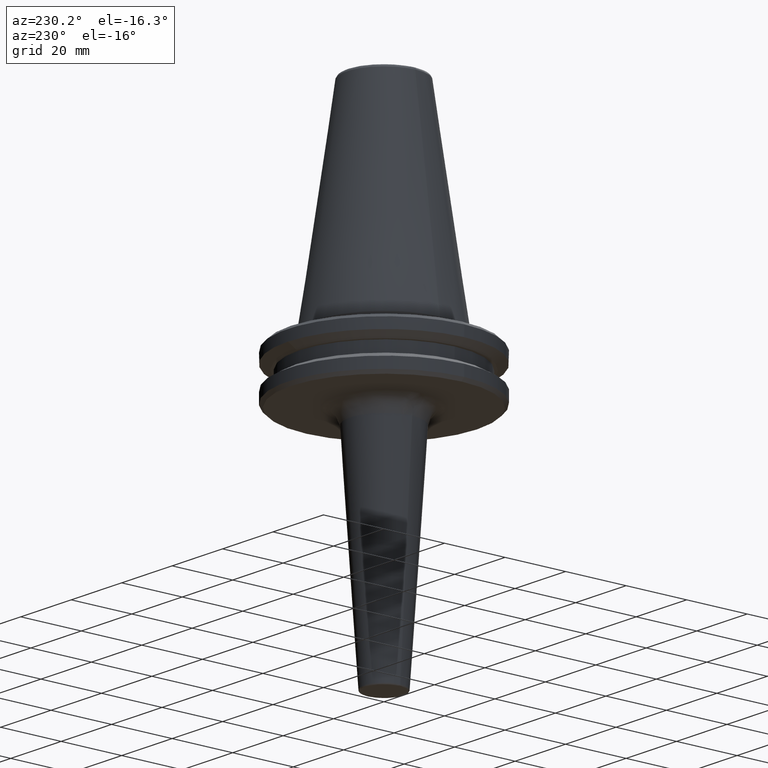
[diagram: clean part render]
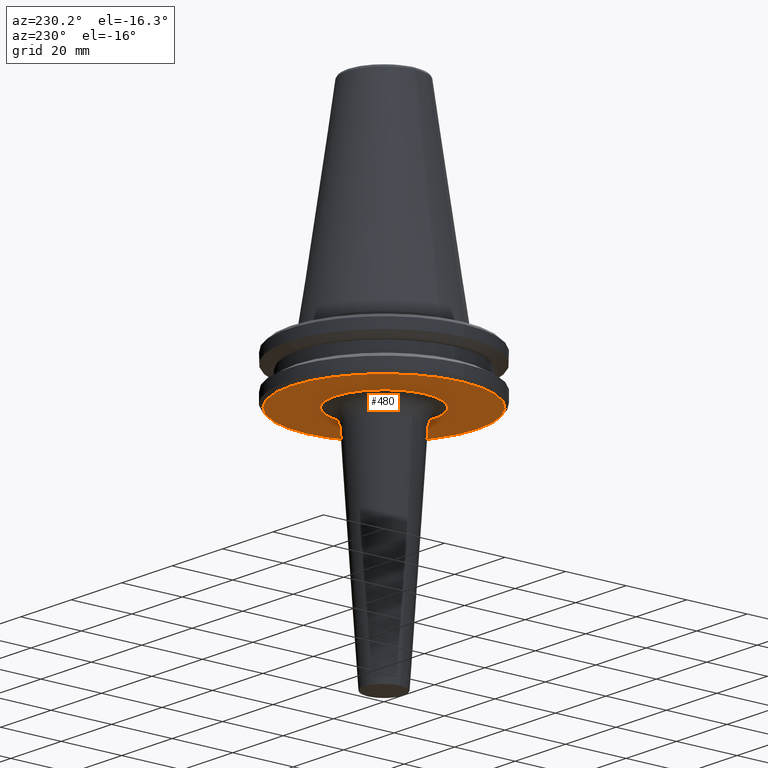
[diagram: same view with one face highlighted and labeled with its STEP entity id]
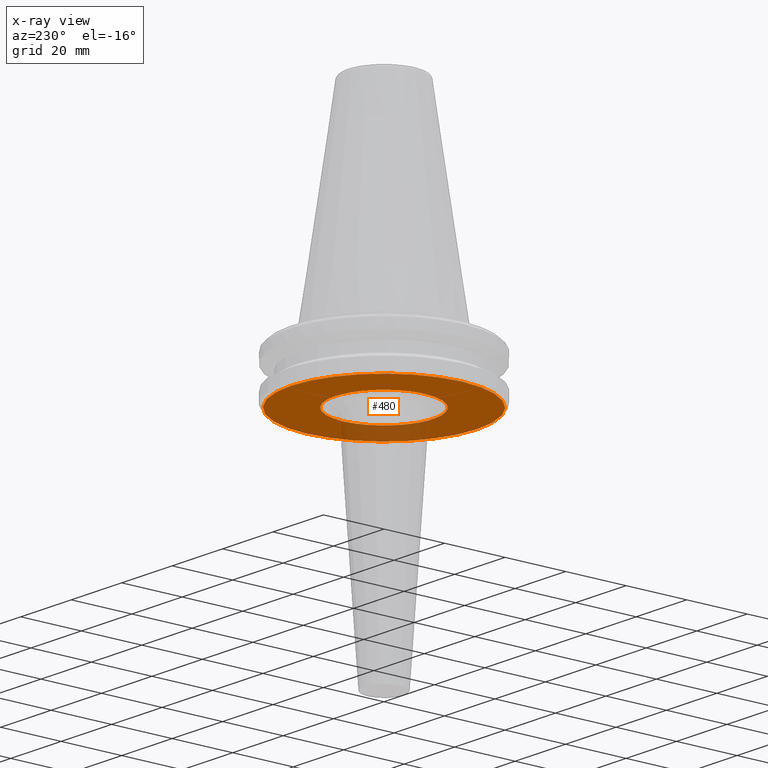
[diagram: x-ray of the same camera — body ghosted, the highlighted face saturated]
A machine part, auxiliary view. The second image highlights one B-rep face of the part: STEP entity #480.
The next image is the same camera in x-ray: the body ghosted, the highlighted face saturated — about 15% of this face is hidden behind the body in this view.
In plain terms, the highlighted planar face has unit normal (0, 0, -1).
Its self-contained STEP definition (entity closure, byte-faithful):
#2 = CARTESIAN_POINT ( 'NONE',  ( 1.971116551030571300, 16.08770573178700000, -19.10000000000000100 ) ) ;
#3 = CARTESIAN_POINT ( 'NONE',  ( 2.974150553997553500, 15.90205793444023100, -19.10000000000000100 ) ) ;
#6 = EDGE_CURVE ( 'NONE', #888, #996, #572, .T. ) ;
#9 = CARTESIAN_POINT ( 'NONE',  ( 3.008236973642987700, 15.89564859819049200, -19.10000000000000100 ) ) ;
#12 = CARTESIAN_POINT ( 'NONE',  ( 3.072635116647917100, 15.88332775239781300, -19.10000000000000500 ) ) ;
#17 = CARTESIAN_POINT ( 'NONE',  ( 3.169149084727929100, 15.86456066499453500, -19.10000000000000500 ) ) ;
#20 = CARTESIAN_POINT ( 'NONE',  ( -8.737999526921823800, 13.61514343514481200, -19.10000000000000500 ) ) ;
#25 = CARTESIAN_POINT ( 'NONE',  ( 3.393765618589601500, 15.81877006338711800, -19.10000000000000900 ) ) ;
#26 = CARTESIAN_POINT ( 'NONE',  ( 3.840667786346210600, 15.71918593617312600, -19.10000000000000500 ) ) ;
#31 = CARTESIAN_POINT ( 'NONE',  ( 4.725148521992487400, 15.48800598574859900, -19.10000000000000100 ) ) ;
#32 = CARTESIAN_POINT ( 'NONE',  ( 0.9891585670951685800, 16.17773303299791400, -19.10000000000000500 ) ) ;
#36 = CARTESIAN_POINT ( 'NONE',  ( 5.467291552774525200, 15.23497454939064100, -19.10000000000000900 ) ) ;
#39 = CARTESIAN_POINT ( 'NONE',  ( -16.08773818139473000, 1.970941229461560300, -19.10000000000000500 ) ) ;
#40 = CARTESIAN_POINT ( 'NONE',  ( 5.985428523495694500, 15.02982971854463800, -19.10000000000000100 ) ) ;
#41 = VERTEX_POINT ( 'NONE', #1140 ) ;
#43 = CARTESIAN_POINT ( 'NONE',  ( 6.018458502751270700, 15.01663702727699400, -19.10000000000000100 ) ) ;
#46 = CARTESIAN_POINT ( 'NONE',  ( 6.081817590824343300, 14.99109058592911300, -19.10000000000000500 ) ) ;
#48 = CARTESIAN_POINT ( 'NONE',  ( 6.176706686414919800, 14.95248451681799100, -19.10000000000000500 ) ) ;
#51 = CARTESIAN_POINT ( 'NONE',  ( 6.397067820493013800, 14.86039883926698300, -19.10000000000000500 ) ) ;
#53 = CARTESIAN_POINT ( 'NONE',  ( 6.833603066116205000, 14.66820808566471300, -19.10000000000000500 ) ) ;
#56 = CARTESIAN_POINT ( 'NONE',  ( 7.689925467230589900, 14.25174898445914800, -19.10000000000000900 ) ) ;
#59 = CARTESIAN_POINT ( 'NONE',  ( -8.040560257298219300, 14.04292798415468700, -19.10000000000000100 ) ) ;
#61 = CARTESIAN_POINT ( 'NONE',  ( -15.23497454939380100, 5.467291552766536900, -19.10000000000000500 ) ) ;
#62 = CARTESIAN_POINT ( 'NONE',  ( 8.395205085102356100, 13.83979387942406400, -19.10000000000000500 ) ) ;
#64 = CARTESIAN_POINT ( 'NONE',  ( 8.909809292678756900, 13.50333247007544900, -19.10000000000000500 ) ) ;
#65 = CARTESIAN_POINT ( 'NONE',  ( 8.969230403243500400, 13.46394756089499700, -19.10000000000000500 ) ) ;
#72 = CARTESIAN_POINT ( 'NONE',  ( 9.084976501324396400, 13.38613433630070100, -19.10000000000000500 ) ) ;
#75 = CARTESIAN_POINT ( 'NONE',  ( 9.257742390675620200, 13.26837078503416300, -19.09999999999999800 ) ) ;
#76 = CARTESIAN_POINT ( 'NONE',  ( 9.654889994771005800, 12.98628316478650600, -19.10000000000000500 ) ) ;
#80 = CARTESIAN_POINT ( 'NONE',  ( 10.42529398539852500, 12.39288392178829100, -19.10000000000000500 ) ) ;
#82 = CARTESIAN_POINT ( 'NONE',  ( 11.04468389011369400, 11.83415770921344100, -19.10000000000000100 ) ) ;
#84 = CARTESIAN_POINT ( 'NONE',  ( 12.22885520225660200, 10.64990756405711100, -19.10000000000000500 ) ) ;
#88 = CARTESIAN_POINT ( 'NONE',  ( 12.92979661513234300, 9.787143716516389700, -19.10000000000000100 ) ) ;
#91 = CARTESIAN_POINT ( 'NONE',  ( 13.57889959961305100, 8.794224005572246500, -19.10000000000000900 ) ) ;
#92 = CARTESIAN_POINT ( 'NONE',  ( -6.463105286439981600, 14.84074172916447600, -19.10000000000001200 ) ) ;
#94 = CARTESIAN_POINT ( 'NONE',  ( 13.61514343514571700, 8.737999526919411500, -19.10000000000000900 ) ) ;
#96 = CARTESIAN_POINT ( 'NONE',  ( 13.68842039294202500, 8.622777181132301300, -19.10000000000000900 ) ) ;
#97 = CARTESIAN_POINT ( 'NONE',  ( 13.79718642340126100, 8.449352837137608300, -19.10000000000000900 ) ) ;
#99 = CARTESIAN_POINT ( 'NONE',  ( 14.04292798415957900, 8.040560257285116900, -19.10000000000000500 ) ) ;
#101 = CARTESIAN_POINT ( 'NONE',  ( 14.50222773108998600, 7.206431988787282500, -19.10000000000000500 ) ) ;
#104 = CARTESIAN_POINT ( 'NONE',  ( 14.84074172916819700, 6.463105286429987800, -19.10000000000000500 ) ) ;
#105 = CARTESIAN_POINT ( 'NONE',  ( 15.05446926980854800, 5.923190165142228700, -19.10000000000000500 ) ) ;
#106 = CARTESIAN_POINT ( 'NONE',  ( 15.06594842473603400, 5.893923458087432900, -19.10000000000000500 ) ) ;
#109 = CARTESIAN_POINT ( 'NONE',  ( 15.08971340016873900, 5.832815762092592700, -19.10000000000000900 ) ) ;
#111 = DIRECTION ( 'NONE',  ( -1.000000000000000000, 0.0000000000000000000, -0.0000000000000000000 ) ) ;
#112 = EDGE_CURVE ( 'NONE', #1405, #41, #427, .T. ) ;
#113 = CARTESIAN_POINT ( 'NONE',  ( 15.12507447555004300, 5.741072942177204700, -19.10000000000000900 ) ) ;
#115 = CARTESIAN_POINT ( 'NONE',  ( 15.20557893706553900, 5.526437430912799300, -19.10000000000000100 ) ) ;
#116 = DIRECTION ( 'NONE',  ( 0.0000000000000000000, 0.0000000000000000000, -1.000000000000000000 ) ) ;
#118 = CARTESIAN_POINT ( 'NONE',  ( 15.35856900259964600, 5.094890682536595600, -19.10000000000000900 ) ) ;
#119 = CARTESIAN_POINT ( 'NONE',  ( 15.63247370368026200, 4.222694282394644300, -19.10000000000000500 ) ) ;
#123 = CARTESIAN_POINT ( 'NONE',  ( 15.81226271034205900, 3.459492390748053000, -19.09999999999999800 ) ) ;
#125 = CARTESIAN_POINT ( 'NONE',  ( -2.517484680619183300, 15.98154654005900700, -19.10000000000000500 ) ) ;
#126 = CARTESIAN_POINT ( 'NONE',  ( 15.91364743245185100, 2.911522033802087500, -19.10000000000000900 ) ) ;
#133 = CARTESIAN_POINT ( 'NONE',  ( 15.91884911776305200, 2.882924573215829500, -19.10000000000000900 ) ) ;
#134 = CARTESIAN_POINT ( 'NONE',  ( 15.92975085846598500, 2.822069884585610500, -19.10000000000000900 ) ) ;
#136 = CARTESIAN_POINT ( 'NONE',  ( 15.94583971772917500, 2.730764174004906200, -19.10000000000000100 ) ) ;
#138 = CARTESIAN_POINT ( 'NONE',  ( 15.98153412680489500, 2.517551772535636400, -19.10000000000000100 ) ) ;
#141 = CARTESIAN_POINT ( 'NONE',  ( 16.04553789480275200, 2.090463995806593800, -19.10000000000000900 ) ) ;
#142 = CARTESIAN_POINT ( 'NONE',  ( 16.14400523018405000, 1.233636547186491200, -19.10000000000000500 ) ) ;
#148 = CARTESIAN_POINT ( 'NONE',  ( 16.17776545945763900, 0.4946669138058040800, -19.10000000000000900 ) ) ;
#149 = CARTESIAN_POINT ( 'NONE',  ( 16.17776545945763500, 0.0000000000000000000, -19.10000000000000900 ) ) ;
#156 = CARTESIAN_POINT ( 'NONE',  ( -12.39288392180904300, 10.42529398538092900, -19.10000000000000100 ) ) ;
#173 = CARTESIAN_POINT ( 'NONE',  ( 0.0000000000000000000, 2.166680460328873200E-015, -19.10000000000000500 ) ) ;
#240 = CARTESIAN_POINT ( 'NONE',  ( -16.17776545945763500, 1.981204868728140300E-015, -19.10000000000000900 ) ) ;
#250 = CARTESIAN_POINT ( 'NONE',  ( 16.17776545945763500, 0.0000000000000000000, -19.10000000000000900 ) ) ;
#251 = CARTESIAN_POINT ( 'NONE',  ( 16.17776545945763200, -0.9896893680380787200, -19.10000000000000100 ) ) ;
#254 = CARTESIAN_POINT ( 'NONE',  ( 16.08773818139473000, -1.970941229441625800, -19.10000000000000500 ) ) ;
#258 = CARTESIAN_POINT ( 'NONE',  ( 0.0000000000000000000, 0.0000000000000000000, -19.10000000000006200 ) ) ;
#264 = CARTESIAN_POINT ( 'NONE',  ( 15.90205692038999200, -2.974156032797210500, -19.10000000000000900 ) ) ;
#267 = CARTESIAN_POINT ( 'NONE',  ( 15.89564859819135600, -3.008236973640769000, -19.10000000000000900 ) ) ;
#269 = CARTESIAN_POINT ( 'NONE',  ( 15.88332775239949300, -3.072635116643580100, -19.10000000000000500 ) ) ;
#271 = CARTESIAN_POINT ( 'NONE',  ( 15.86456066499740400, -3.169149084720523500, -19.10000000000000500 ) ) ;
#273 = CARTESIAN_POINT ( 'NONE',  ( -3.459492390746776700, 15.81226271034234400, -19.10000000000000500 ) ) ;
#276 = CARTESIAN_POINT ( 'NONE',  ( 15.81877006339245800, -3.393765618575776100, -19.10000000000000500 ) ) ;
#279 = CARTESIAN_POINT ( 'NONE',  ( 15.71918593618229200, -3.840667786322510900, -19.10000000000000500 ) ) ;
#283 = CARTESIAN_POINT ( 'NONE',  ( -8.794224005571855700, 13.57889959961366200, -19.10000000000000900 ) ) ;
#287 = CARTESIAN_POINT ( 'NONE',  ( 15.48800598576080900, -4.725148521960875300, -19.10000000000000100 ) ) ;
#291 = CARTESIAN_POINT ( 'NONE',  ( 15.23497454939761800, -5.467291552756460500, -19.10000000000000100 ) ) ;
#294 = CARTESIAN_POINT ( 'NONE',  ( -15.01663702727796900, 6.018458502748801600, -19.10000000000000100 ) ) ;
#299 = CARTESIAN_POINT ( 'NONE',  ( 15.02982971854420100, -5.985428523496832300, -19.10000000000000500 ) ) ;
#301 = CARTESIAN_POINT ( 'NONE',  ( 15.01663702727763900, -6.018458502749685300, -19.10000000000000500 ) ) ;
#303 = CARTESIAN_POINT ( 'NONE',  ( 14.99109058593037400, -6.081817590821252400, -19.10000000000000500 ) ) ;
#309 = CARTESIAN_POINT ( 'NONE',  ( 14.95248451682014600, -6.176706686409636900, -19.10000000000000500 ) ) ;
#311 = AXIS2_PLACEMENT_3D ( 'NONE', #1136, #788, #1188 ) ;
#317 = CARTESIAN_POINT ( 'NONE',  ( 14.86039883927101900, -6.397067820483150600, -19.10000000000000900 ) ) ;
#319 = CARTESIAN_POINT ( 'NONE',  ( 14.66820808567163100, -6.833603066099289700, -19.10000000000000500 ) ) ;
#321 = CARTESIAN_POINT ( 'NONE',  ( 14.25174898446837600, -7.689925467208041700, -19.10000000000000900 ) ) ;
#324 = CARTESIAN_POINT ( 'NONE',  ( -13.38613433630616900, 9.084976501319761900, -19.10000000000000500 ) ) ;
#325 = CARTESIAN_POINT ( 'NONE',  ( 13.83979387942934700, -8.395205085089468600, -19.10000000000000900 ) ) ;
#326 = CARTESIAN_POINT ( 'NONE',  ( 13.50333247007478800, -8.909809292680360900, -19.10000000000000100 ) ) ;
#331 = CARTESIAN_POINT ( 'NONE',  ( 13.46394756089642200, -8.969230403242505600, -19.10000000000000100 ) ) ;
#332 = CARTESIAN_POINT ( 'NONE',  ( 13.38613433630341700, -9.084976501322508100, -19.10000000000000100 ) ) ;
#336 = CARTESIAN_POINT ( 'NONE',  ( 13.26837078503867300, -9.257742390672483200, -19.10000000000000500 ) ) ;
#345 = CARTESIAN_POINT ( 'NONE',  ( 12.98628316479425100, -9.654889994765623500, -19.10000000000001200 ) ) ;
#349 = CARTESIAN_POINT ( 'NONE',  ( 12.39288392179861700, -10.42529398539135600, -19.10000000000000500 ) ) ;
#353 = CARTESIAN_POINT ( 'NONE',  ( 11.83415770921933900, -11.04468389010959900, -19.10000000000000900 ) ) ;
#355 = CARTESIAN_POINT ( 'NONE',  ( 10.64990756404531600, -12.22885520226480700, -19.10000000000000500 ) ) ;
#357 = CARTESIAN_POINT ( 'NONE',  ( 9.787143716510067600, -12.92979661513507300, -19.10000000000000900 ) ) ;
#362 = CARTESIAN_POINT ( 'NONE',  ( 8.794224005572633700, -13.57889959961288400, -19.10000000000000500 ) ) ;
#365 = CARTESIAN_POINT ( 'NONE',  ( 8.737999526920878800, -13.61514343514491700, -19.10000000000000100 ) ) ;
#367 = CARTESIAN_POINT ( 'NONE',  ( -15.48800598575412800, 4.725148521978519900, -19.10000000000000500 ) ) ;
#370 = CARTESIAN_POINT ( 'NONE',  ( 8.622777181135097300, -13.68842039294050900, -19.10000000000000500 ) ) ;
#371 = CARTESIAN_POINT ( 'NONE',  ( 8.449352837142260600, -13.79718642339874500, -19.10000000000000900 ) ) ;
#381 = CARTESIAN_POINT ( 'NONE',  ( 8.040560257293092800, -14.04292798415527200, -19.10000000000000500 ) ) ;
#383 = CARTESIAN_POINT ( 'NONE',  ( -15.86456066499583200, 3.169149084724659700, -19.10000000000000500 ) ) ;
#393 = CARTESIAN_POINT ( 'NONE',  ( 7.206431988797927300, -14.50222773108423400, -19.10000000000000500 ) ) ;
#397 = CARTESIAN_POINT ( 'NONE',  ( 6.463105286436075400, -14.84074172916490800, -19.10000000000000100 ) ) ;
#402 = CARTESIAN_POINT ( 'NONE',  ( 5.923190165141850400, -15.05446926980874900, -19.10000000000000500 ) ) ;
#407 = CARTESIAN_POINT ( 'NONE',  ( 5.893923458087883200, -15.06594842473596100, -19.10000000000000900 ) ) ;
#410 = CARTESIAN_POINT ( 'NONE',  ( 5.832815762093464000, -15.08971340016859000, -19.10000000000000500 ) ) ;
#414 = CARTESIAN_POINT ( 'NONE',  ( -14.25174898447302700, 7.689925467195524600, -19.10000000000000500 ) ) ;
#416 = CARTESIAN_POINT ( 'NONE',  ( 5.741072942178694100, -15.12507447554980000, -19.10000000000000500 ) ) ;
#420 = CARTESIAN_POINT ( 'NONE',  ( 5.526437430915565900, -15.20557893706509500, -19.10000000000000500 ) ) ;
#423 = CARTESIAN_POINT ( 'NONE',  ( 5.094890682541338500, -15.35856900259886800, -19.10000000000000900 ) ) ;
#427 = B_SPLINE_CURVE_WITH_KNOTS ( 'NONE', 3,
 ( #1275, #1384, #963, #1007, #732, #725, #716, #714, #706, #695, #692, #689, #685, #679, #676, #669, #667, #663, #661, #650, #646, #642, #635, #617, #606, #602, #599, #596, #594, #588, #583, #578, #575, #567, #561, #554, #549, #546, #538, #533, #527, #519, #514, #511, #506, #504, #502, #498, #488, #485, #478, #473, #463, #460, #456, #447, #444, #438, #436, #432, #428, #423, #420, #416, #410, #407, #402, #397, #393, #381, #371, #370, #365, #362, #357, #355, #353, #349, #345, #336, #332, #331, #326, #325, #321, #319, #317, #309, #303, #301, #299, #291, #287, #279, #276, #271, #269, #267, #264, #254, #251, #250 ),
 .UNSPECIFIED., .F., .F.,
 ( 4, 1, 1, 1, 1, 2, 2, 1, 1, 1, 1, 2, 2, 1, 1, 1, 2, 2, 2, 1, 1, 1, 2, 2, 1, 1, 1, 1, 2, 2, 1, 1, 1, 1, 2, 2, 2, 1, 1, 1, 1, 2, 2, 1, 1, 1, 1, 2, 2, 1, 1, 1, 2, 2, 2, 1, 1, 1, 2, 2, 1, 1, 1, 1, 2, 2, 1, 1, 1, 1, 2, 2, 4 ),
 ( 0.0000000000000000000, 0.03125000000000027100, 0.04687500000000040200, 0.05468750000000050000, 0.05859375000000054800, 0.06054687500000059000, 0.06250000000000062500, 0.09375000000000148500, 0.1093750000000018900, 0.1171875000000021200, 0.1210937500000022600, 0.1230468750000023300, 0.1250000000000023900, 0.1562500000000031900, 0.1718750000000036100, 0.1796875000000038600, 0.1835937500000039100, 0.1875000000000040000, 0.2500000000000058300, 0.2812500000000067700, 0.2968750000000073300, 0.3046875000000076600, 0.3085937500000077700, 0.3125000000000079400, 0.3437500000000091000, 0.3593750000000096600, 0.3671875000000099400, 0.3710937500000101000, 0.3730468750000101600, 0.3750000000000102700, 0.4062500000000103300, 0.4218750000000104400, 0.4296875000000104400, 0.4335937500000104400, 0.4355468750000104400, 0.4375000000000104400, 0.5000000000000105500, 0.5312500000000105500, 0.5468750000000106600, 0.5546875000000105500, 0.5585937500000106600, 0.5605468750000106600, 0.5625000000000106600, 0.5937500000000099900, 0.6093750000000097700, 0.6171875000000095500, 0.6210937500000094400, 0.6230468750000094400, 0.6250000000000093300, 0.6562500000000077700, 0.6718750000000069900, 0.6796875000000066600, 0.6835937500000065500, 0.6875000000000065500, 0.7500000000000055500, 0.7812500000000051100, 0.7968750000000048800, 0.8046875000000047700, 0.8085937500000046600, 0.8125000000000045500, 0.8437500000000044400, 0.8593750000000043300, 0.8671875000000043300, 0.8710937500000043300, 0.8730468750000043300, 0.8750000000000043300, 0.9062500000000033300, 0.9218750000000027800, 0.9296875000000025500, 0.9335937500000023300, 0.9355468750000022200, 0.9375000000000021100, 1.000000000000000000 ),
 .UNSPECIFIED. ) ;
#428 = CARTESIAN_POINT ( 'NONE',  ( 4.222694282400973400, -15.63247370367923000, -19.10000000000001200 ) ) ;
#432 = CARTESIAN_POINT ( 'NONE',  ( 3.459492390751665700, -15.81226271034147700, -19.09999999999999800 ) ) ;
#436 = CARTESIAN_POINT ( 'NONE',  ( 2.911522033801861500, -15.91364743245189400, -19.10000000000000500 ) ) ;
#438 = CARTESIAN_POINT ( 'NONE',  ( 2.882913790585304600, -15.91885111275051100, -19.10000000000000100 ) ) ;
#442 = CARTESIAN_POINT ( 'NONE',  ( -5.526437430911822300, 15.20557893706576300, -19.10000000000000100 ) ) ;
#444 = CARTESIAN_POINT ( 'NONE',  ( 2.822048832783158100, -15.92975475344151400, -19.10000000000000500 ) ) ;
#447 = CARTESIAN_POINT ( 'NONE',  ( 2.730728231903156700, -15.94584636768738800, -19.09999999999999800 ) ) ;
#456 = CARTESIAN_POINT ( 'NONE',  ( 2.517484680612378100, -15.98154654006025200, -19.10000000000000900 ) ) ;
#460 = CARTESIAN_POINT ( 'NONE',  ( 2.090348981080995200, -16.04555917466905200, -19.10000000000000100 ) ) ;
#463 = CARTESIAN_POINT ( 'NONE',  ( 1.233483194219029400, -16.14403360333912500, -19.10000000000000500 ) ) ;
#467 = CARTESIAN_POINT ( 'NONE',  ( -15.90205692038998800, 2.974156032796588800, -19.10000000000000100 ) ) ;
#473 = CARTESIAN_POINT ( 'NONE',  ( 0.4945792835386778600, -16.17778167268910700, -19.10000000000000500 ) ) ;
#475 = CARTESIAN_POINT ( 'NONE',  ( -2.822048832785294600, 15.92975475344112900, -19.10000000000000500 ) ) ;
#478 = CARTESIAN_POINT ( 'NONE',  ( -0.9891585670773813700, -16.17773303299469500, -19.10000000000001200 ) ) ;
#480 = ADVANCED_FACE ( 'NONE', ( #634, #863 ), #943, .T. ) ;
#485 = CARTESIAN_POINT ( 'NONE',  ( -1.971116551011383900, -16.08770573178377500, -19.10000000000001200 ) ) ;
#488 = CARTESIAN_POINT ( 'NONE',  ( -2.974150553998158300, -15.90205793444032900, -19.10000000000000100 ) ) ;
#491 = CARTESIAN_POINT ( 'NONE',  ( -2.911522033802166100, 15.91364743245183400, -19.10000000000000500 ) ) ;
#498 = CARTESIAN_POINT ( 'NONE',  ( -3.008236973640896000, -15.89564859819132500, -19.10000000000000500 ) ) ;
#502 = CARTESIAN_POINT ( 'NONE',  ( -3.072635116643827500, -15.88332775239943700, -19.10000000000000500 ) ) ;
#503 = CARTESIAN_POINT ( 'NONE',  ( -15.89564859819089000, 3.008236973642010700, -19.10000000000000500 ) ) ;
#504 = CARTESIAN_POINT ( 'NONE',  ( -3.169149084720940500, -15.86456066499730100, -19.10000000000000500 ) ) ;
#506 = CARTESIAN_POINT ( 'NONE',  ( -3.393765618576554600, -15.81877006339228100, -19.10000000000000900 ) ) ;
#511 = CARTESIAN_POINT ( 'NONE',  ( -3.840667786323845400, -15.71918593618198700, -19.10000000000000500 ) ) ;
#514 = CARTESIAN_POINT ( 'NONE',  ( -4.725148521962655200, -15.48800598576041000, -19.10000000000000500 ) ) ;
#519 = CARTESIAN_POINT ( 'NONE',  ( -5.467291552757482800, -15.23497454939738900, -19.10000000000000900 ) ) ;
#523 = CARTESIAN_POINT ( 'NONE',  ( -13.46394756089786600, 8.969230403241059700, -19.10000000000000100 ) ) ;
#525 = CARTESIAN_POINT ( 'NONE',  ( -15.88332775239857700, 3.072635116646004900, -19.10000000000000500 ) ) ;
#527 = CARTESIAN_POINT ( 'NONE',  ( -5.985428523496771000, -15.02982971854421200, -19.10000000000000500 ) ) ;
#529 = CARTESIAN_POINT ( 'NONE',  ( -14.99109058593101600, 6.081817590819528400, -19.10000000000000500 ) ) ;
#533 = CARTESIAN_POINT ( 'NONE',  ( -6.018458502749775000, -15.01663702727757900, -19.10000000000000100 ) ) ;
#538 = CARTESIAN_POINT ( 'NONE',  ( -6.081817590821423800, -14.99109058593026600, -19.10000000000000900 ) ) ;
#546 = CARTESIAN_POINT ( 'NONE',  ( -6.176706686409928300, -14.95248451681996800, -19.10000000000000900 ) ) ;
#549 = CARTESIAN_POINT ( 'NONE',  ( -6.397067820483692400, -14.86039883927066400, -19.10000000000000900 ) ) ;
#553 = CARTESIAN_POINT ( 'NONE',  ( -7.206431988804767200, 14.50222773108346900, -19.10000000000000500 ) ) ;
#554 = CARTESIAN_POINT ( 'NONE',  ( -6.833603066100216900, -14.66820808567103100, -19.10000000000000500 ) ) ;
#561 = CARTESIAN_POINT ( 'NONE',  ( -7.689925467209268300, -14.25174898446757500, -19.10000000000000500 ) ) ;
#567 = CARTESIAN_POINT ( 'NONE',  ( -8.395205085090175600, -13.83979387942887800, -19.10000000000000500 ) ) ;
#572 = CIRCLE ( 'NONE', #311, 30.75000000000072100 ) ;
#575 = CARTESIAN_POINT ( 'NONE',  ( -8.909809292680279200, -13.50333247007484900, -19.10000000000000500 ) ) ;
#578 = CARTESIAN_POINT ( 'NONE',  ( -8.969230403241878600, -13.46394756089683200, -19.10000000000000100 ) ) ;
#583 = CARTESIAN_POINT ( 'NONE',  ( -9.084976501321314400, -13.38613433630420200, -19.10000000000000500 ) ) ;
#586 = CARTESIAN_POINT ( 'NONE',  ( -15.71918593617725800, 3.840667786335744300, -19.10000000000000100 ) ) ;
#588 = CARTESIAN_POINT ( 'NONE',  ( -9.257742390670499000, -13.26837078503997000, -19.10000000000000100 ) ) ;
#594 = CARTESIAN_POINT ( 'NONE',  ( -9.654889994762227100, -12.98628316479646600, -19.10000000000000500 ) ) ;
#596 = CARTESIAN_POINT ( 'NONE',  ( -10.42529398538682300, -12.39288392180158000, -19.10000000000000500 ) ) ;
#599 = CARTESIAN_POINT ( 'NONE',  ( -11.04468389010700400, -11.83415770922103300, -19.10000000000000500 ) ) ;
#602 = CARTESIAN_POINT ( 'NONE',  ( -12.22885520226998700, -10.64990756404193200, -19.10000000000000500 ) ) ;
#606 = CARTESIAN_POINT ( 'NONE',  ( -12.92979661512444300, -9.787143716522493300, -19.10000000000000900 ) ) ;
#616 = CARTESIAN_POINT ( 'NONE',  ( -8.622777181136903800, 13.68842039294030500, -19.10000000000000500 ) ) ;
#617 = CARTESIAN_POINT ( 'NONE',  ( -13.57889959961354800, -8.794224005571859200, -19.10000000000000500 ) ) ;
#634 = FACE_BOUND ( 'NONE', #1154, .T. ) ;
#635 = CARTESIAN_POINT ( 'NONE',  ( -13.61514343514502900, -8.737999526921161200, -19.10000000000000900 ) ) ;
#642 = CARTESIAN_POINT ( 'NONE',  ( -13.68842039294072400, -8.622777181135635500, -19.10000000000000500 ) ) ;
#646 = CARTESIAN_POINT ( 'NONE',  ( -13.79718642339909900, -8.449352837143148800, -19.10000000000000900 ) ) ;
#650 = CARTESIAN_POINT ( 'NONE',  ( -14.04292798415588100, -8.040560257294618700, -19.10000000000000500 ) ) ;
#658 = ORIENTED_EDGE ( 'NONE', *, *, #6, .F. ) ;
#661 = CARTESIAN_POINT ( 'NONE',  ( -14.50222773108504600, -7.206431988799956800, -19.10000000000000100 ) ) ;
#663 = CARTESIAN_POINT ( 'NONE',  ( -14.84074172916538200, -6.463105286437233600, -19.10000000000001200 ) ) ;
#667 = CARTESIAN_POINT ( 'NONE',  ( -15.05446926980872700, -5.923190165141775800, -19.10000000000001200 ) ) ;
#669 = CARTESIAN_POINT ( 'NONE',  ( -15.06594842473605800, -5.893923458087379600, -19.10000000000000900 ) ) ;
#671 = CARTESIAN_POINT ( 'NONE',  ( 30.75000000000072100, 0.0000000000000000000, -19.10000000000006200 ) ) ;
#676 = CARTESIAN_POINT ( 'NONE',  ( -15.08971340016876500, -5.832815762092480800, -19.09999999999999800 ) ) ;
#679 = CARTESIAN_POINT ( 'NONE',  ( -15.12507447555009700, -5.741072942177023500, -19.10000000000000500 ) ) ;
#685 = CARTESIAN_POINT ( 'NONE',  ( -15.20557893706564400, -5.526437430912454700, -19.10000000000000900 ) ) ;
#689 = CARTESIAN_POINT ( 'NONE',  ( -15.35856900259981500, -5.094890682536005900, -19.10000000000000500 ) ) ;
#692 = CARTESIAN_POINT ( 'NONE',  ( -15.63247370368048200, -4.222694282393861800, -19.10000000000000500 ) ) ;
#695 = CARTESIAN_POINT ( 'NONE',  ( -15.81226271034219300, -3.459492390747604100, -19.10000000000000500 ) ) ;
#700 = CARTESIAN_POINT ( 'NONE',  ( -10.64990756403340400, 12.22885520227671600, -19.10000000000000900 ) ) ;
#706 = CARTESIAN_POINT ( 'NONE',  ( -15.91364743245184100, -2.911522033802117700, -19.10000000000000500 ) ) ;
#714 = CARTESIAN_POINT ( 'NONE',  ( -15.91884911776305400, -2.882924573215801100, -19.10000000000000900 ) ) ;
#716 = CARTESIAN_POINT ( 'NONE',  ( -15.92975085846598100, -2.822069884585550100, -19.10000000000000100 ) ) ;
#719 = CARTESIAN_POINT ( 'NONE',  ( -13.83979387943199400, 8.395205085082318800, -19.10000000000000500 ) ) ;
#725 = CARTESIAN_POINT ( 'NONE',  ( -15.94583971772917500, -2.730764174004805000, -19.10000000000000500 ) ) ;
#732 = CARTESIAN_POINT ( 'NONE',  ( -15.98153412680489500, -2.517551772535444600, -19.10000000000000100 ) ) ;
#738 = CARTESIAN_POINT ( 'NONE',  ( -14.66820808567512400, 6.833603066089902500, -19.10000000000000900 ) ) ;
#742 = CARTESIAN_POINT ( 'NONE',  ( -2.882913790586399300, 15.91885111275032500, -19.10000000000000100 ) ) ;
#751 = CIRCLE ( 'NONE', #1224, 30.75000000000072100 ) ;
#777 = CARTESIAN_POINT ( 'NONE',  ( -8.449352837145246700, 13.79718642339840100, -19.10000000000000100 ) ) ;
#780 = ORIENTED_EDGE ( 'NONE', *, *, #1483, .F. ) ;
#785 = DIRECTION ( 'NONE',  ( -0.0000000000000000000, -0.0000000000000000000, 1.000000000000000000 ) ) ;
#788 = DIRECTION ( 'NONE',  ( -0.0000000000000000000, -0.0000000000000000000, 1.000000000000000000 ) ) ;
#806 = CARTESIAN_POINT ( 'NONE',  ( -4.222694282392415800, 15.63247370368075000, -19.10000000000000900 ) ) ;
#818 = EDGE_LOOP ( 'NONE', ( #780, #658 ) ) ;
#826 = CARTESIAN_POINT ( 'NONE',  ( -16.17776545945763500, 1.981204868728140300E-015, -19.10000000000000900 ) ) ;
#844 = CARTESIAN_POINT ( 'NONE',  ( -30.75000000000072100, 3.827021247335525400E-015, -19.10000000000006200 ) ) ;
#851 = ORIENTED_EDGE ( 'NONE', *, *, #1334, .T. ) ;
#857 = DIRECTION ( 'NONE',  ( 1.000000000000000000, 0.0000000000000000000, 0.0000000000000000000 ) ) ;
#863 = FACE_OUTER_BOUND ( 'NONE', #818, .T. ) ;
#886 = CARTESIAN_POINT ( 'NONE',  ( -16.17776545945763900, 0.9896893680579755800, -19.10000000000000100 ) ) ;
#888 = VERTEX_POINT ( 'NONE', #844 ) ;
#898 = CARTESIAN_POINT ( 'NONE',  ( -11.83415770922529500, 11.04468389010363600, -19.10000000000000900 ) ) ;
#915 = CARTESIAN_POINT ( 'NONE',  ( -13.26837078504323300, 9.257742390667917900, -19.09999999999999400 ) ) ;
#926 = CARTESIAN_POINT ( 'NONE',  ( -14.86039883927305800, 6.397067820477669600, -19.10000000000000500 ) ) ;
#937 = CARTESIAN_POINT ( 'NONE',  ( -12.98628316480206900, 9.654889994757805700, -19.10000000000000900 ) ) ;
#943 = PLANE ( 'NONE',  #1287 ) ;
#952 = CARTESIAN_POINT ( 'NONE',  ( -5.893923458087277500, 15.06594842473606700, -19.10000000000000100 ) ) ;
#963 = CARTESIAN_POINT ( 'NONE',  ( -16.14400523018405000, -1.233636547186051800, -19.10000000000000500 ) ) ;
#970 = CARTESIAN_POINT ( 'NONE',  ( -2.730728231906806700, 15.94584636768674100, -19.10000000000000900 ) ) ;
#986 = B_SPLINE_CURVE_WITH_KNOTS ( 'NONE', 3,
 ( #149, #148, #142, #141, #138, #136, #134, #133, #126, #123, #119, #118, #115, #113, #109, #106, #105, #104, #101, #99, #97, #96, #94, #91, #88, #84, #82, #80, #76, #75, #72, #65, #64, #62, #56, #53, #51, #48, #46, #43, #40, #36, #31, #26, #25, #17, #12, #9, #3, #2, #32, #1301, #1062, #1112, #125, #970, #475, #742, #491, #273, #806, #1337, #442, #1281, #1081, #952, #1278, #92, #553, #59, #777, #616, #20, #283, #1020, #700, #898, #156, #937, #915, #324, #523, #1280, #719, #414, #738, #926, #1328, #529, #294, #1070, #61, #367, #586, #1433, #383, #525, #503, #467, #39, #886, #240 ),
 .UNSPECIFIED., .F., .F.,
 ( 4, 1, 1, 1, 1, 2, 2, 1, 1, 1, 1, 2, 2, 1, 1, 1, 2, 2, 2, 1, 1, 1, 2, 2, 1, 1, 1, 1, 2, 2, 1, 1, 1, 1, 2, 2, 2, 1, 1, 1, 1, 2, 2, 1, 1, 1, 1, 2, 2, 1, 1, 1, 2, 2, 2, 1, 1, 1, 2, 2, 1, 1, 1, 1, 2, 2, 1, 1, 1, 1, 2, 2, 4 ),
 ( 0.0000000000000000000, 0.03124999999999846700, 0.04687499999999771000, 0.05468749999999734900, 0.05859374999999718300, 0.06054687499999710000, 0.06249999999999701600, 0.09374999999999600300, 0.1093749999999954900, 0.1171874999999952500, 0.1210937499999951700, 0.1230468749999951300, 0.1249999999999950900, 0.1562499999999945000, 0.1718749999999941700, 0.1796874999999940900, 0.1835937499999940300, 0.1874999999999939800, 0.2499999999999933900, 0.2812499999999930100, 0.2968749999999929500, 0.3046874999999929500, 0.3085937499999930100, 0.3124999999999931200, 0.3437499999999933400, 0.3593749999999934500, 0.3671874999999935100, 0.3710937499999935600, 0.3730468749999935600, 0.3749999999999935600, 0.4062499999999942300, 0.4218749999999945600, 0.4296874999999947300, 0.4335937499999948400, 0.4355468749999948400, 0.4374999999999948400, 0.4999999999999958900, 0.5312499999999963400, 0.5468749999999965600, 0.5546874999999966700, 0.5585937499999966700, 0.5605468749999966700, 0.5624999999999966700, 0.5937499999999966700, 0.6093749999999965600, 0.6171874999999964500, 0.6210937499999963400, 0.6230468749999964500, 0.6249999999999964500, 0.6562499999999966700, 0.6718749999999967800, 0.6796874999999968900, 0.6835937499999968900, 0.6874999999999968900, 0.7499999999999976700, 0.7812499999999981100, 0.7968749999999982200, 0.8046874999999982200, 0.8085937499999983300, 0.8124999999999983300, 0.8437499999999981100, 0.8593749999999980000, 0.8671874999999980000, 0.8710937499999980000, 0.8730468749999980000, 0.8749999999999980000, 0.9062499999999983300, 0.9218749999999985600, 0.9296874999999985600, 0.9335937499999985600, 0.9355468749999985600, 0.9374999999999986700, 1.000000000000000000 ),
 .UNSPECIFIED. ) ;
#996 = VERTEX_POINT ( 'NONE', #671 ) ;
#1007 = CARTESIAN_POINT ( 'NONE',  ( -16.04553789480274200, -2.090463995806264300, -19.09999999999999400 ) ) ;
#1020 = CARTESIAN_POINT ( 'NONE',  ( -9.787143716522550100, 12.92979661512259200, -19.10000000000001200 ) ) ;
#1062 = CARTESIAN_POINT ( 'NONE',  ( -1.233483194234600300, 16.14403360333629700, -19.10000000000000500 ) ) ;
#1070 = CARTESIAN_POINT ( 'NONE',  ( -15.02982971854444600, 5.985428523496196400, -19.10000000000000500 ) ) ;
#1081 = CARTESIAN_POINT ( 'NONE',  ( -5.832815762092285400, 15.08971340016880600, -19.10000000000000900 ) ) ;
#1112 = CARTESIAN_POINT ( 'NONE',  ( -2.090348981092675600, 16.04555917466693800, -19.10000000000000500 ) ) ;
#1136 = CARTESIAN_POINT ( 'NONE',  ( 0.0000000000000000000, 0.0000000000000000000, -19.10000000000006200 ) ) ;
#1140 = CARTESIAN_POINT ( 'NONE',  ( 16.17776545945763500, 0.0000000000000000000, -19.10000000000000900 ) ) ;
#1154 = EDGE_LOOP ( 'NONE', ( #851, #1161 ) ) ;
#1161 = ORIENTED_EDGE ( 'NONE', *, *, #112, .T. ) ;
#1188 = DIRECTION ( 'NONE',  ( 1.000000000000000000, 0.0000000000000000000, 0.0000000000000000000 ) ) ;
#1224 = AXIS2_PLACEMENT_3D ( 'NONE', #258, #785, #857 ) ;
#1275 = CARTESIAN_POINT ( 'NONE',  ( -16.17776545945763500, 1.981204868728140300E-015, -19.10000000000000900 ) ) ;
#1278 = CARTESIAN_POINT ( 'NONE',  ( -5.923190165141603500, 15.05446926980877900, -19.10000000000000500 ) ) ;
#1280 = CARTESIAN_POINT ( 'NONE',  ( -13.50333247007445400, 8.909809292681259800, -19.10000000000000100 ) ) ;
#1281 = CARTESIAN_POINT ( 'NONE',  ( -5.741072942176685100, 15.12507447555016400, -19.10000000000000900 ) ) ;
#1287 = AXIS2_PLACEMENT_3D ( 'NONE', #173, #116, #111 ) ;
#1301 = CARTESIAN_POINT ( 'NONE',  ( -0.4945792835475791800, 16.17778167268749500, -19.10000000000000100 ) ) ;
#1328 = CARTESIAN_POINT ( 'NONE',  ( -14.95248451682123800, 6.176706686406697100, -19.10000000000000100 ) ) ;
#1334 = EDGE_CURVE ( 'NONE', #41, #1405, #986, .T. ) ;
#1337 = CARTESIAN_POINT ( 'NONE',  ( -5.094890682534921400, 15.35856900260001200, -19.10000000000000500 ) ) ;
#1384 = CARTESIAN_POINT ( 'NONE',  ( -16.17776545945763500, -0.4946669138055515600, -19.10000000000000100 ) ) ;
#1405 = VERTEX_POINT ( 'NONE', #826 ) ;
#1433 = CARTESIAN_POINT ( 'NONE',  ( -15.81877006338952900, 3.393765618583498300, -19.10000000000000500 ) ) ;
#1483 = EDGE_CURVE ( 'NONE', #996, #888, #751, .T. ) ;